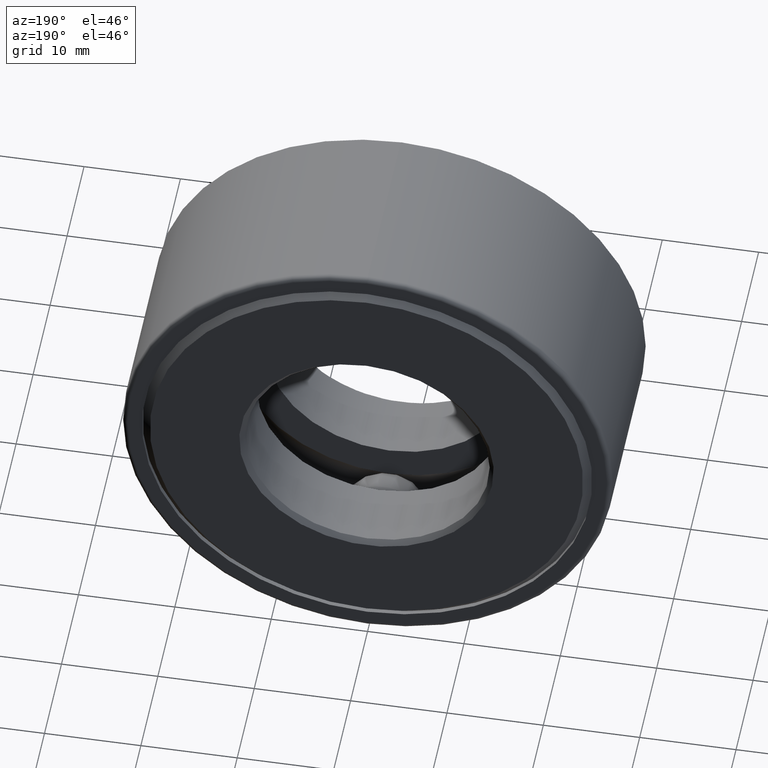
[diagram: clean part render]
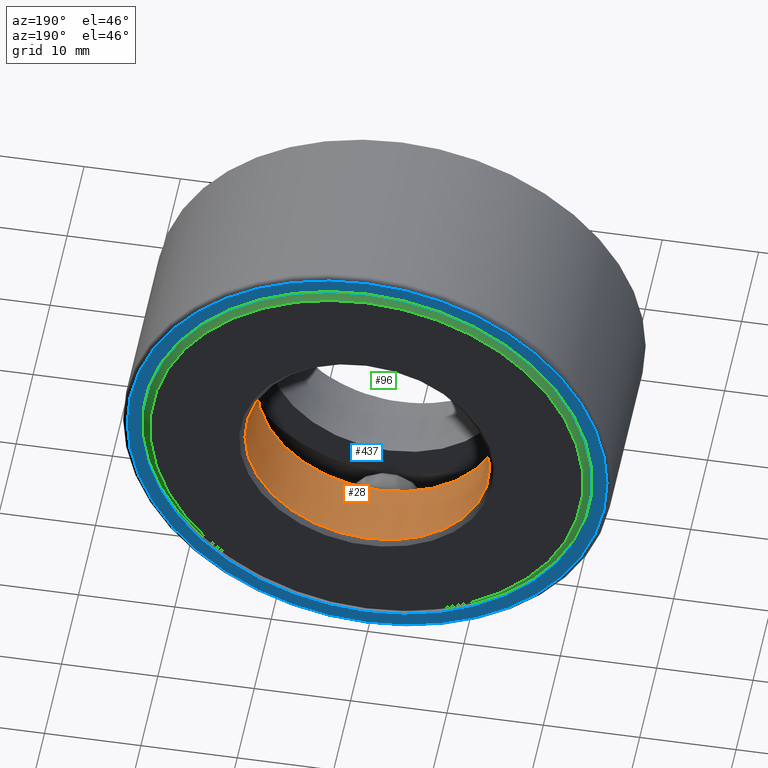
[diagram: same view with three faces highlighted in distinct colors, each labeled with its STEP entity id]
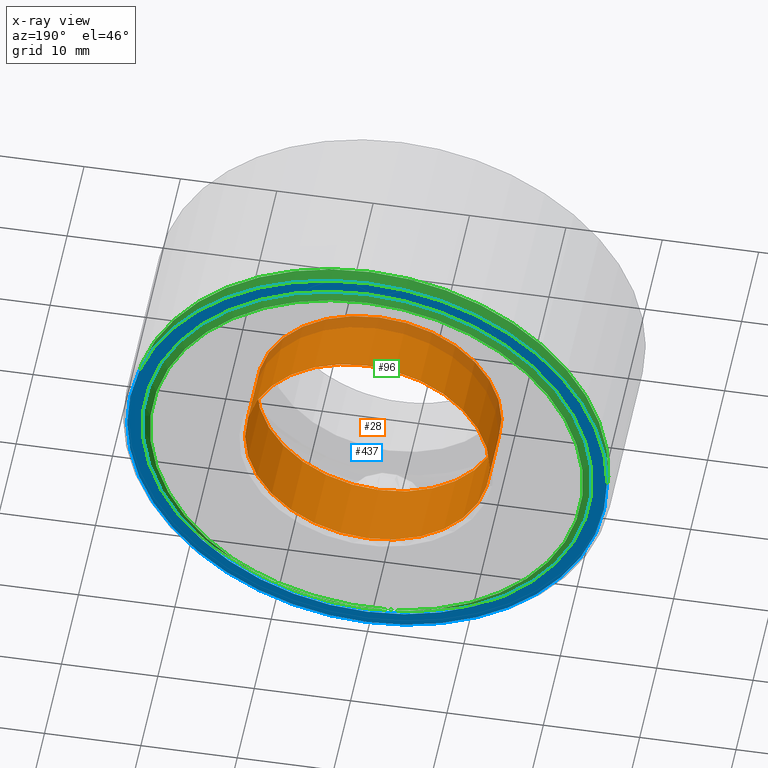
[diagram: x-ray of the same camera — body ghosted, the three highlighted faces saturated]
A machine part, auxiliary view with three faces highlighted in distinct colors.
The next image is the same camera in x-ray (body ghosted, the three faces saturated) — at least one of them is partly hidden behind the body in this view.
Their STEP definitions:

[orange] entity #28 — the highlighted cylindrical surface (bore or boss wall) has radius 12.7 mm, axis along (-0, 1, -0).
#6 = VERTEX_POINT ( 'NONE', #83 ) ;
#22 = EDGE_LOOP ( 'NONE', ( #284 ) ) ;
#28 = ADVANCED_FACE ( 'NONE', ( #445, #161 ), #66, .F. ) ;
#31 = EDGE_CURVE ( 'NONE', #313, #313, #105, .T. ) ;
#66 = CYLINDRICAL_SURFACE ( 'NONE', #72, 0.5000000000000001100 ) ;
#72 = AXIS2_PLACEMENT_3D ( 'NONE', #234, #601, #376 ) ;
#83 = CARTESIAN_POINT ( 'NONE',  ( 0.0000000000000000000, 0.5187500000000000400, 0.5000000000000001100 ) ) ;
#87 = DIRECTION ( 'NONE',  ( 0.0000000000000000000, 0.0000000000000000000, 1.000000000000000000 ) ) ;
#105 = CIRCLE ( 'NONE', #280, 0.5000000000000001100 ) ;
#143 = DIRECTION ( 'NONE',  ( 0.0000000000000000000, 0.0000000000000000000, 1.000000000000000000 ) ) ;
#161 = FACE_OUTER_BOUND ( 'NONE', #22, .T. ) ;
#200 = EDGE_LOOP ( 'NONE', ( #483 ) ) ;
#234 = CARTESIAN_POINT ( 'NONE',  ( 0.0000000000000000000, 0.0000000000000000000, 0.0000000000000000000 ) ) ;
#239 = AXIS2_PLACEMENT_3D ( 'NONE', #591, #276, #87 ) ;
#242 = DIRECTION ( 'NONE',  ( -0.0000000000000000000, 1.000000000000000000, -0.0000000000000000000 ) ) ;
#276 = DIRECTION ( 'NONE',  ( -0.0000000000000000000, 1.000000000000000000, -0.0000000000000000000 ) ) ;
#280 = AXIS2_PLACEMENT_3D ( 'NONE', #467, #242, #143 ) ;
#284 = ORIENTED_EDGE ( 'NONE', *, *, #570, .F. ) ;
#313 = VERTEX_POINT ( 'NONE', #367 ) ;
#367 = CARTESIAN_POINT ( 'NONE',  ( 0.0000000000000000000, 0.7924999999999997600, 0.5000000000000001100 ) ) ;
#376 = DIRECTION ( 'NONE',  ( 0.0000000000000000000, 0.0000000000000000000, 1.000000000000000000 ) ) ;
#445 = FACE_OUTER_BOUND ( 'NONE', #200, .T. ) ;
#467 = CARTESIAN_POINT ( 'NONE',  ( 0.0000000000000000000, 0.7924999999999997600, 0.0000000000000000000 ) ) ;
#483 = ORIENTED_EDGE ( 'NONE', *, *, #31, .T. ) ;
#549 = CIRCLE ( 'NONE', #239, 0.5000000000000001100 ) ;
#570 = EDGE_CURVE ( 'NONE', #6, #6, #549, .T. ) ;
#591 = CARTESIAN_POINT ( 'NONE',  ( 0.0000000000000000000, 0.5187500000000000400, 0.0000000000000000000 ) ) ;
#601 = DIRECTION ( 'NONE',  ( -0.0000000000000000000, 1.000000000000000000, -0.0000000000000000000 ) ) ;

[blue] entity #437 — the highlighted planar face has unit normal (0, -1, 0).
#7 = ORIENTED_EDGE ( 'NONE', *, *, #259, .T. ) ;
#68 = EDGE_LOOP ( 'NONE', ( #7 ) ) ;
#70 = CARTESIAN_POINT ( 'NONE',  ( 0.0000000000000000000, 0.7974999999999999900, 0.0000000000000000000 ) ) ;
#82 = CARTESIAN_POINT ( 'NONE',  ( 0.0000000000000000000, 0.7974999999999999900, 0.9799999999999999800 ) ) ;
#92 = VERTEX_POINT ( 'NONE', #82 ) ;
#111 = EDGE_LOOP ( 'NONE', ( #595 ) ) ;
#117 = AXIS2_PLACEMENT_3D ( 'NONE', #455, #412, #183 ) ;
#129 = VERTEX_POINT ( 'NONE', #500 ) ;
#152 = DIRECTION ( 'NONE',  ( -0.0000000000000000000, 1.000000000000000000, -0.0000000000000000000 ) ) ;
#163 = DIRECTION ( 'NONE',  ( 0.0000000000000000000, -0.0000000000000000000, -1.000000000000000000 ) ) ;
#164 = CIRCLE ( 'NONE', #502, 0.9799999999999999800 ) ;
#183 = DIRECTION ( 'NONE',  ( 0.0000000000000000000, 0.0000000000000000000, 1.000000000000000000 ) ) ;
#251 = CIRCLE ( 'NONE', #117, 0.9200000000000000400 ) ;
#259 = EDGE_CURVE ( 'NONE', #92, #92, #164, .T. ) ;
#312 = DIRECTION ( 'NONE',  ( 0.0000000000000000000, -1.000000000000000000, 0.0000000000000000000 ) ) ;
#412 = DIRECTION ( 'NONE',  ( -0.0000000000000000000, 1.000000000000000000, -0.0000000000000000000 ) ) ;
#437 = ADVANCED_FACE ( 'NONE', ( #517, #590 ), #444, .F. ) ;
#444 = PLANE ( 'NONE',  #480 ) ;
#455 = CARTESIAN_POINT ( 'NONE',  ( 0.0000000000000000000, 0.7974999999999999900, 0.0000000000000000000 ) ) ;
#480 = AXIS2_PLACEMENT_3D ( 'NONE', #70, #312, #163 ) ;
#500 = CARTESIAN_POINT ( 'NONE',  ( 0.0000000000000000000, 0.7974999999999999900, 0.9200000000000000400 ) ) ;
#502 = AXIS2_PLACEMENT_3D ( 'NONE', #532, #152, #579 ) ;
#517 = FACE_BOUND ( 'NONE', #111, .T. ) ;
#532 = CARTESIAN_POINT ( 'NONE',  ( 0.0000000000000000000, 0.7974999999999999900, 0.0000000000000000000 ) ) ;
#579 = DIRECTION ( 'NONE',  ( 0.0000000000000000000, 0.0000000000000000000, 1.000000000000000000 ) ) ;
#584 = EDGE_CURVE ( 'NONE', #129, #129, #251, .T. ) ;
#590 = FACE_OUTER_BOUND ( 'NONE', #68, .T. ) ;
#595 = ORIENTED_EDGE ( 'NONE', *, *, #584, .F. ) ;

[green] entity #96 — the highlighted conical surface has half-angle 45 deg.
#4 = CARTESIAN_POINT ( 'NONE',  ( 0.0000000000000000000, 0.8125000000000001100, 0.0000000000000000000 ) ) ;
#23 = DIRECTION ( 'NONE',  ( -0.0000000000000000000, 1.000000000000000000, -0.0000000000000000000 ) ) ;
#55 = CARTESIAN_POINT ( 'NONE',  ( 0.0000000000000000000, 0.7245000000000001400, 0.0000000000000000000 ) ) ;
#79 = FACE_OUTER_BOUND ( 'NONE', #365, .T. ) ;
#96 = ADVANCED_FACE ( 'NONE', ( #79, #207 ), #536, .T. ) ;
#99 = DIRECTION ( 'NONE',  ( -0.0000000000000000000, 1.000000000000000000, -0.0000000000000000000 ) ) ;
#102 = DIRECTION ( 'NONE',  ( 0.0000000000000000000, 0.0000000000000000000, -1.000000000000000000 ) ) ;
#107 = EDGE_CURVE ( 'NONE', #185, #185, #262, .T. ) ;
#115 = AXIS2_PLACEMENT_3D ( 'NONE', #4, #567, #102 ) ;
#136 = ORIENTED_EDGE ( 'NONE', *, *, #107, .T. ) ;
#155 = CARTESIAN_POINT ( 'NONE',  ( 0.0000000000000000000, 0.8125000000000001100, 0.0000000000000000000 ) ) ;
#185 = VERTEX_POINT ( 'NONE', #271 ) ;
#207 = FACE_BOUND ( 'NONE', #389, .T. ) ;
#238 = EDGE_CURVE ( 'NONE', #516, #516, #481, .T. ) ;
#262 = CIRCLE ( 'NONE', #373, 0.9729999999999997500 ) ;
#271 = CARTESIAN_POINT ( 'NONE',  ( 0.0000000000000000000, 0.7245000000000001400, 0.9729999999999997500 ) ) ;
#328 = CARTESIAN_POINT ( 'NONE',  ( 0.0000000000000000000, 0.8125000000000001100, 0.8849999999999996800 ) ) ;
#354 = DIRECTION ( 'NONE',  ( 0.0000000000000000000, 0.0000000000000000000, 1.000000000000000000 ) ) ;
#365 = EDGE_LOOP ( 'NONE', ( #136 ) ) ;
#373 = AXIS2_PLACEMENT_3D ( 'NONE', #55, #99, #393 ) ;
#389 = EDGE_LOOP ( 'NONE', ( #475 ) ) ;
#393 = DIRECTION ( 'NONE',  ( 0.0000000000000000000, 0.0000000000000000000, 1.000000000000000000 ) ) ;
#394 = AXIS2_PLACEMENT_3D ( 'NONE', #155, #23, #354 ) ;
#475 = ORIENTED_EDGE ( 'NONE', *, *, #238, .F. ) ;
#481 = CIRCLE ( 'NONE', #394, 0.8849999999999996800 ) ;
#516 = VERTEX_POINT ( 'NONE', #328 ) ;
#536 = CONICAL_SURFACE ( 'NONE', #115, 0.8849999999999996800, 0.7853981633974482800 ) ;
#567 = DIRECTION ( 'NONE',  ( 0.0000000000000000000, -1.000000000000000000, 0.0000000000000000000 ) ) ;